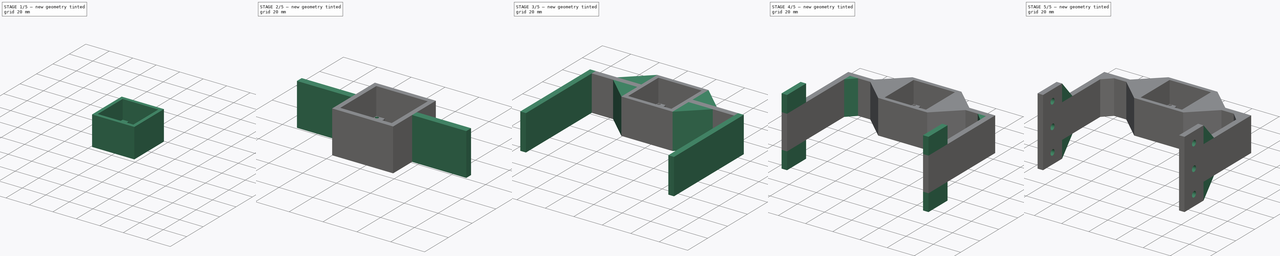
[diagram: build sequence overview — one tinted view per stage of 5, left to right]
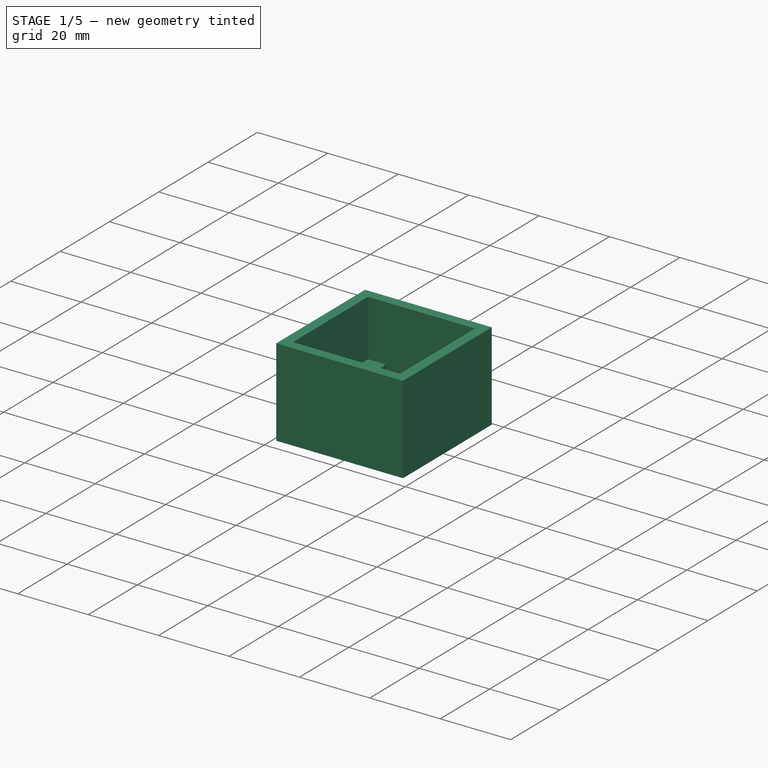
[diagram: stage 1 of 5 — iso view after this stage's code; geometry added in this stage tinted green]
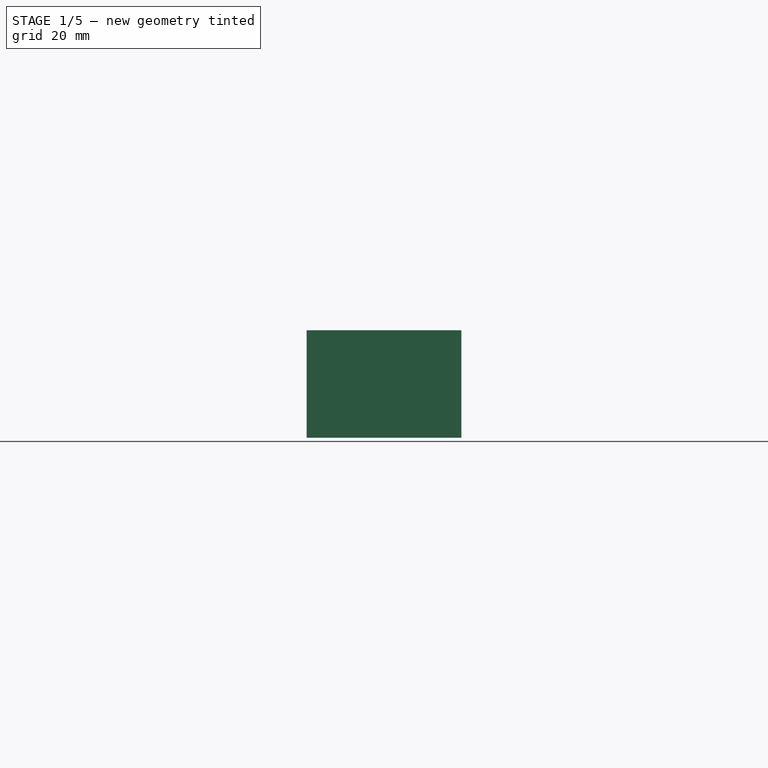
[diagram: stage 1 of 5 — front view after this stage's code; geometry added in this stage tinted green]
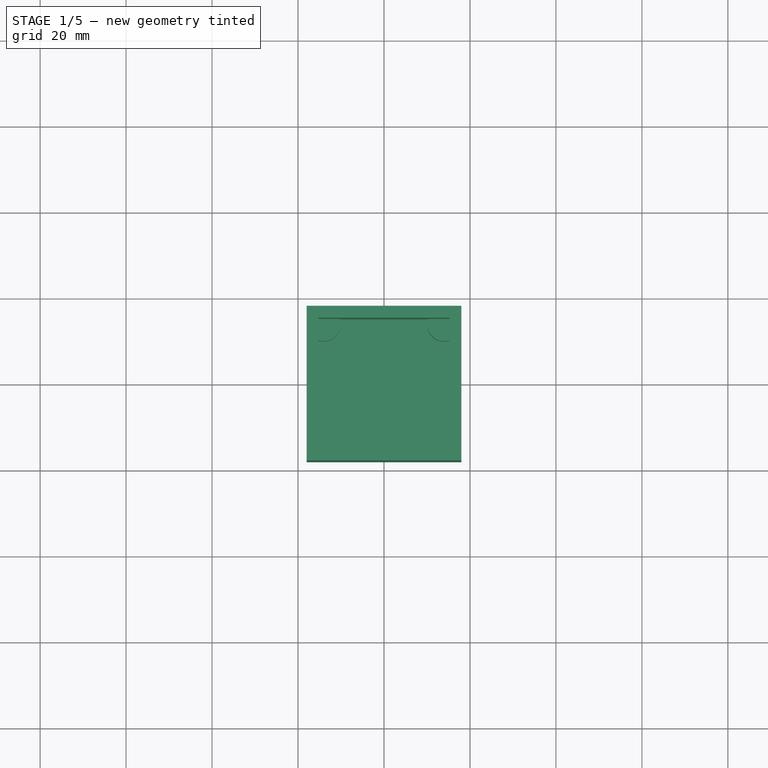
[diagram: stage 1 of 5 — top view after this stage's code; geometry added in this stage tinted green]
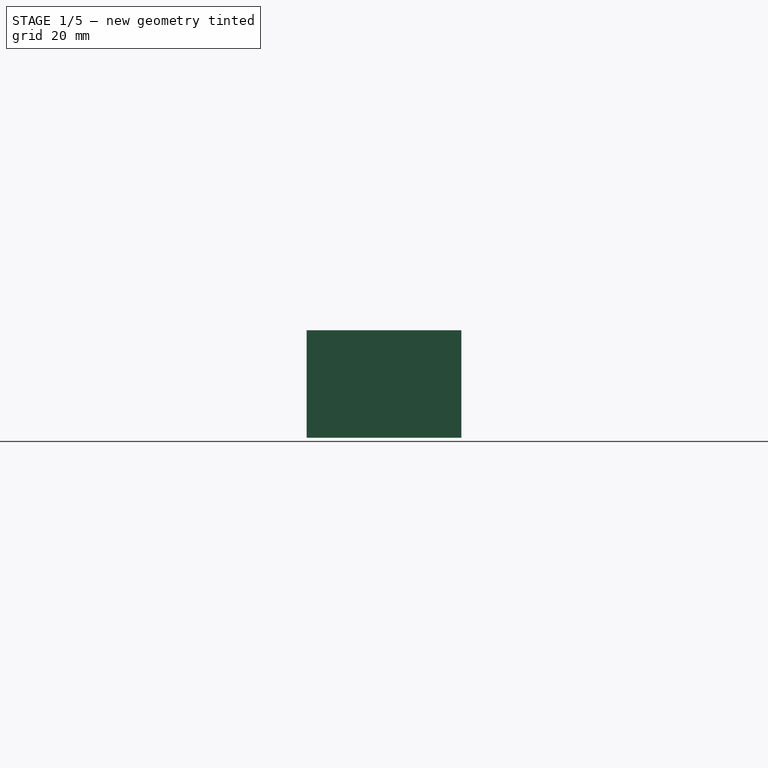
[diagram: stage 1 of 5 — right view after this stage's code; geometry added in this stage tinted green]
FCSTD DOCUMENT  (FreeCAD 0.20R29177 (Git))
Label: Cam_holder
License: All rights reserved
LicenseURL: http://en.wikipedia.org/wiki/All_rights_reserved
objects: Sketcher::SketchObject×15, PartDesign::Plane×13, PartDesign::Pad×12, PartDesign::Pocket×3, PartDesign::Body×1
note: 59 computed .brp shape members not serialized (recipe doc carries the construction recipe); baked Part::Feature solids carry a one-line shape summary decoded from their .brp

FEATURE [Sketcher::SketchObject] Sketch
  FullyConstrained = true
  MapMode = 5
  Support = -> [XY_Plane]
  sketch-geometry (4):
    g0: LineSegment StartX=-18 StartY=18 StartZ=0 EndX=18 EndY=18 EndZ=0
    g1: LineSegment StartX=18 StartY=18 StartZ=0 EndX=18 EndY=-18 EndZ=0
    g2: LineSegment StartX=18 StartY=-18 StartZ=0 EndX=-18 EndY=-18 EndZ=0
    g3: LineSegment StartX=-18 StartY=-18 StartZ=0 EndX=-18 EndY=18 EndZ=0
  constraints (12):
    c: Coincident(g0,g1)
    c: Coincident(g1,g2)
    c: Coincident(g2,g3)
    c: Coincident(g3,g0)
    c: Horizontal(g0)
    c: Horizontal(g2)
    c: Vertical(g1)
    c: Vertical(g3)
    c: DistanceX(g0,g0) = 36
    c: DistanceY(g1,g1) = 36
    c: Distance(g0,g-1) = 18
    c: Distance(g2,g-2) = 18
FEATURE [PartDesign::Pad] Pad
  Direction = (0,0,1)
  Length = 25
  Length2 = 10
  Profile = -> Sketch
  ReferenceAxis = -> Sketch [N_Axis]
  Type = 0
FEATURE [Sketcher::SketchObject] Sketch001
  FullyConstrained = true
  MapMode = 5
  Placement = pos=(0,0,25) rot=(0,0,1;0rad)
  Support = -> [Pad]
  sketch-geometry (4):
    g0: LineSegment StartX=-15.2 StartY=15.2 StartZ=0 EndX=15.2 EndY=15.2 EndZ=0
    g1: LineSegment StartX=15.2 StartY=15.2 StartZ=0 EndX=15.2 EndY=-15.2 EndZ=0
    g2: LineSegment StartX=15.2 StartY=-15.2 StartZ=0 EndX=-15.2 EndY=-15.2 EndZ=0
    g3: LineSegment StartX=-15.2 StartY=-15.2 StartZ=0 EndX=-15.2 EndY=15.2 EndZ=0
  constraints (12):
    c: Coincident(g0,g1)
    c: Coincident(g1,g2)
    c: Coincident(g2,g3)
    c: Coincident(g3,g0)
    c: Horizontal(g0)
    c: Horizontal(g2)
    c: Vertical(g1)
    c: Vertical(g3)
    c: DistanceX(g0,g0) = 30.4
    c: DistanceY(g1,g1) = 30.4
    c: Distance(g0,g-1) = 15.2
    c: Distance(g2,g-2) = 15.2
FEATURE [PartDesign::Pocket] Pocket
  BaseFeature = -> Pad
  Direction = (0,0,-1)
  Length = 22
  Length2 = 5
  Profile = -> Sketch001
  ReferenceAxis = -> Sketch001 [N_Axis]
  Type = 0
FEATURE [Sketcher::SketchObject] Sketch002
  FullyConstrained = true
  MapMode = 5
  Placement = pos=(0,0,3) rot=(0,0,1;0rad)
  Support = -> [Pocket]
  sketch-geometry (4):
    g0: Circle CenterX=-14 CenterY=14 CenterZ=0 NormalX=0 NormalY=0 NormalZ=1 AngleXU=0 Radius=4
    g1: Circle CenterX=14 CenterY=14 CenterZ=0 NormalX=0 NormalY=0 NormalZ=1 AngleXU=0 Radius=4
    g2: Circle CenterX=14 CenterY=-14 CenterZ=0 NormalX=0 NormalY=0 NormalZ=1 AngleXU=0 Radius=4
    g3: Circle CenterX=-14 CenterY=-14 CenterZ=0 NormalX=0 NormalY=0 NormalZ=1 AngleXU=0 Radius=4
  constraints (12):
    c: Distance(g1,g-1) = 14
    c: Distance(g2,g-1) = 14
    c: Distance(g3,g-1) = 14
    c: Distance(g0,g-1) = 14
    c: Distance(g0,g-2) = 14
    c: Distance(g1,g-2) = 14
    c: Distance(g2,g-2) = 14
    c: Distance(g3,g-2) = 14
    c: Diameter(g0) = 8
    c: Diameter(g1) = 8
    c: Diameter(g2) = 8
    c: Diameter(g3) = 8
FEATURE [PartDesign::Pad] Pad001
  BaseFeature = -> Pocket
  Direction = (0,0,1)
  Length = 6
  Length2 = 10
  Profile = -> Sketch002
  ReferenceAxis = -> Sketch002 [N_Axis]
  Type = 0
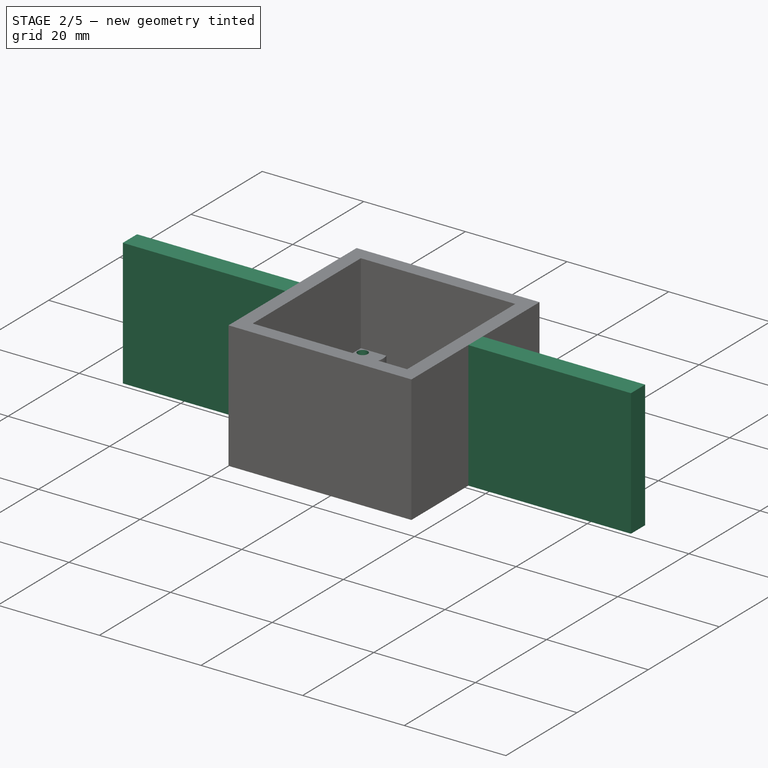
[diagram: stage 2 of 5 — iso view after this stage's code; geometry added in this stage tinted green]
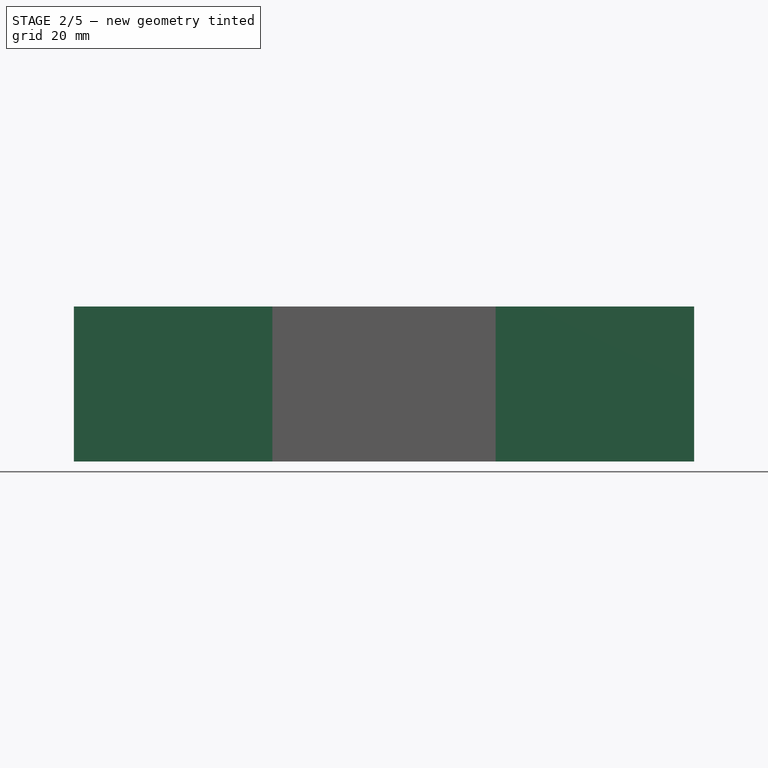
[diagram: stage 2 of 5 — front view after this stage's code; geometry added in this stage tinted green]
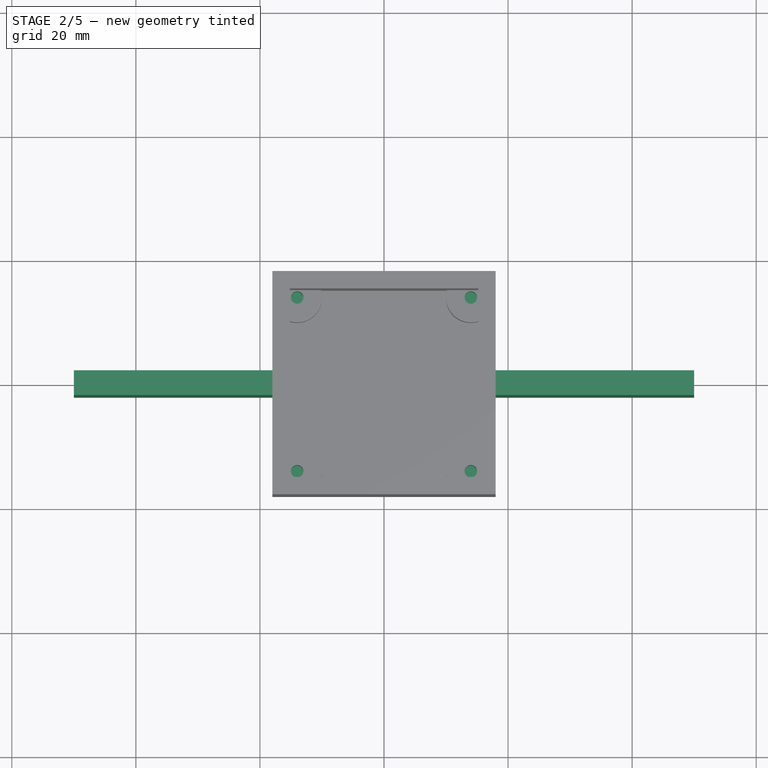
[diagram: stage 2 of 5 — top view after this stage's code; geometry added in this stage tinted green]
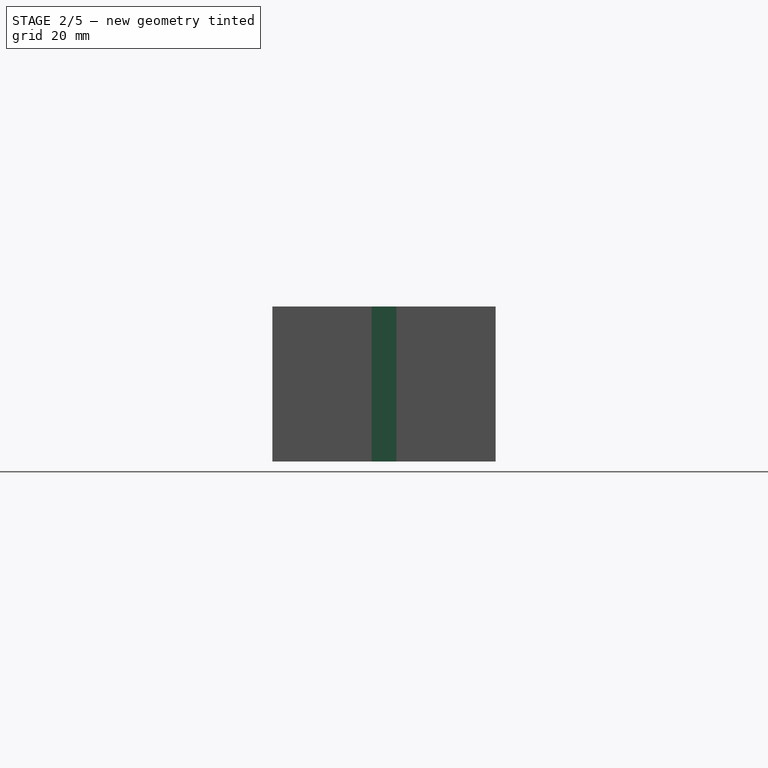
[diagram: stage 2 of 5 — right view after this stage's code; geometry added in this stage tinted green]
FEATURE [PartDesign::Plane] DatumPlane
  Length = 128.044
  MapMode = 5
  Placement = pos=(0,0,9) rot=(0,0,1;0rad)
  ResizeMode = 0
  Support = -> [Pad001]
  Width = 113.044
FEATURE [Sketcher::SketchObject] Sketch003
  FullyConstrained = true
  MapMode = 5
  Placement = pos=(0,0,9) rot=(0,0,1;0rad)
  Support = -> [DatumPlane]
  sketch-geometry (4):
    g0: Circle CenterX=-14 CenterY=-14 CenterZ=0 NormalX=0 NormalY=0 NormalZ=1 AngleXU=0 Radius=1
    g1: Circle CenterX=14 CenterY=-14 CenterZ=0 NormalX=0 NormalY=0 NormalZ=1 AngleXU=0 Radius=1
    g2: Circle CenterX=14 CenterY=14 CenterZ=0 NormalX=0 NormalY=0 NormalZ=1 AngleXU=0 Radius=1
    g3: Circle CenterX=-14 CenterY=14 CenterZ=0 NormalX=0 NormalY=0 NormalZ=1 AngleXU=0 Radius=1
  constraints (12):
    c: Diameter(g3) = 2
    c: Diameter(g2) = 2
    c: Diameter(g1) = 2
    c: Diameter(g0) = 2
    c: Distance(g0,g-2) = 14
    c: Distance(g1,g-2) = 14
    c: Distance(g0,g-1) = 14
    c: Distance(g1,g-1) = 14
    c: Distance(g2,g-1) = 14
    c: Distance(g3,g-1) = 14
    c: Distance(g3,g-2) = 14
    c: Distance(g2,g-2) = 14
FEATURE [PartDesign::Pocket] Pocket001
  BaseFeature = -> Pad001
  Direction = (0,0,-1)
  Length = 6
  Length2 = 5
  Profile = -> Sketch003
  ReferenceAxis = -> Sketch003 [N_Axis]
  Type = 0
FEATURE [PartDesign::Plane] DatumPlane001
  Length = 108.248
  MapMode = 5
  Placement = pos=(18,0,0) rot=(0.57735,0.57735,0.57735;2.0944rad)
  ResizeMode = 0
  Support = -> [Pocket001]
  Width = 77.748
FEATURE [Sketcher::SketchObject] Sketch004
  FullyConstrained = false
  MapMode = 5
  Placement = pos=(18,0,0) rot=(0.57735,0.57735,0.57735;2.0944rad)
  Support = -> [DatumPlane001]
  sketch-geometry (4):
    g0: LineSegment StartX=-2 StartY=25 StartZ=0 EndX=2 EndY=25 EndZ=0
    g1: LineSegment StartX=2 StartY=25 StartZ=0 EndX=2 EndY=0 EndZ=0
    g2: LineSegment StartX=2 StartY=0 StartZ=0 EndX=-2 EndY=0 EndZ=0
    g3: LineSegment StartX=-2 StartY=0 StartZ=0 EndX=-2 EndY=25 EndZ=0
  constraints (9):
    c: Coincident(g0,g1)
    c: Coincident(g1,g2)
    c: Coincident(g2,g3)
    c: Coincident(g3,g0)
    c: Horizontal(g0)
    c: Horizontal(g2)
    c: Vertical(g1)
    c: Vertical(g3)
    c: PointOnObject(g1,g-1)
FEATURE [PartDesign::Pad] Pad002
  BaseFeature = -> Pocket001
  Direction = (1,0,0)
  Length = 32
  Length2 = 10
  Profile = -> Sketch004
  ReferenceAxis = -> Sketch004 [N_Axis]
  Type = 0
FEATURE [PartDesign::Plane] DatumPlane002
  Length = 108.248
  MapMode = 5
  Placement = pos=(-18,0,0) rot=(0.57735,-0.57735,-0.57735;2.0944rad)
  ResizeMode = 0
  Support = -> [Pad002]
  Width = 77.748
FEATURE [Sketcher::SketchObject] Sketch005
  FullyConstrained = false
  MapMode = 5
  Placement = pos=(-18,0,0) rot=(0.57735,-0.57735,-0.57735;2.0944rad)
  Support = -> [DatumPlane002]
  sketch-geometry (4):
    g0: LineSegment StartX=-2 StartY=0 StartZ=0 EndX=2 EndY=0 EndZ=0
    g1: LineSegment StartX=2 StartY=0 StartZ=0 EndX=2 EndY=25 EndZ=0
    g2: LineSegment StartX=2 StartY=25 StartZ=0 EndX=-2 EndY=25 EndZ=0
    g3: LineSegment StartX=-2 StartY=25 StartZ=0 EndX=-2 EndY=0 EndZ=0
  constraints (9):
    c: Coincident(g0,g1)
    c: Coincident(g1,g2)
    c: Coincident(g2,g3)
    c: Coincident(g3,g0)
    c: Horizontal(g0)
    c: Horizontal(g2)
    c: Vertical(g1)
    c: Vertical(g3)
    c: PointOnObject(g0,g-1)
FEATURE [PartDesign::Pad] Pad003
  BaseFeature = -> Pad002
  Direction = (-1,0,0)
  Length = 32
  Length2 = 10
  Profile = -> Sketch005
  ReferenceAxis = -> Sketch005 [N_Axis]
  Type = 0
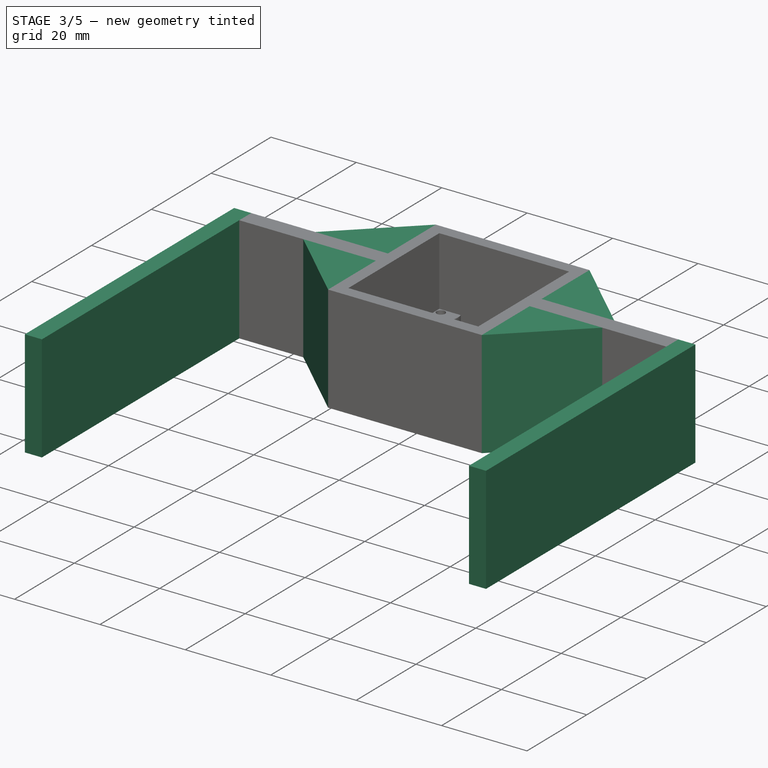
[diagram: stage 3 of 5 — iso view after this stage's code; geometry added in this stage tinted green]
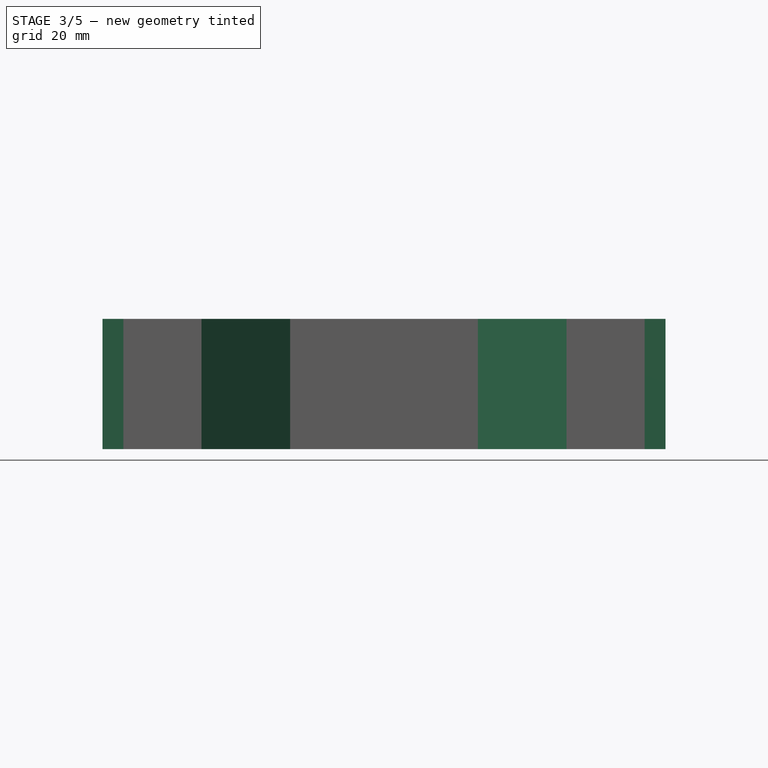
[diagram: stage 3 of 5 — front view after this stage's code; geometry added in this stage tinted green]
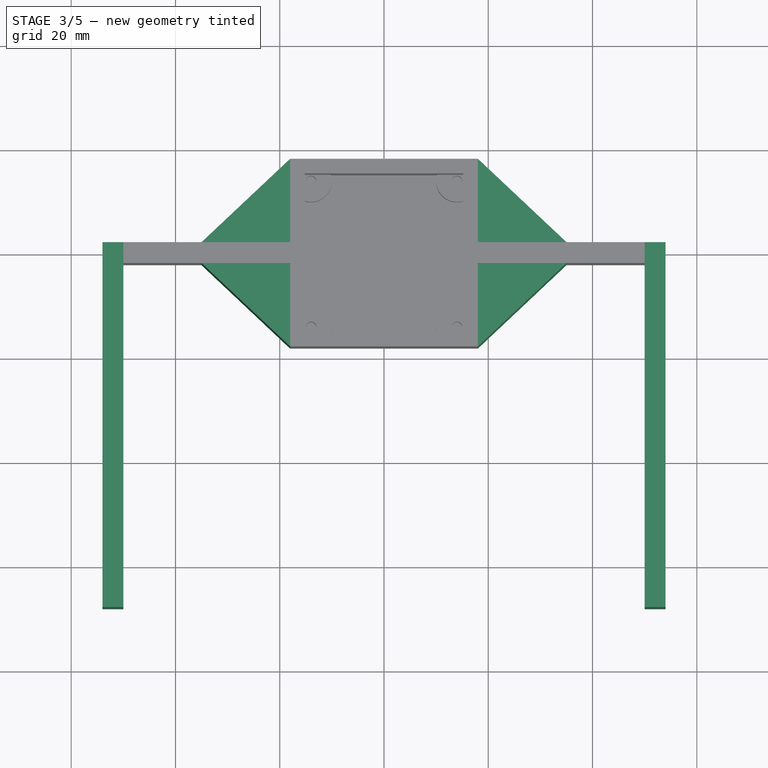
[diagram: stage 3 of 5 — top view after this stage's code; geometry added in this stage tinted green]
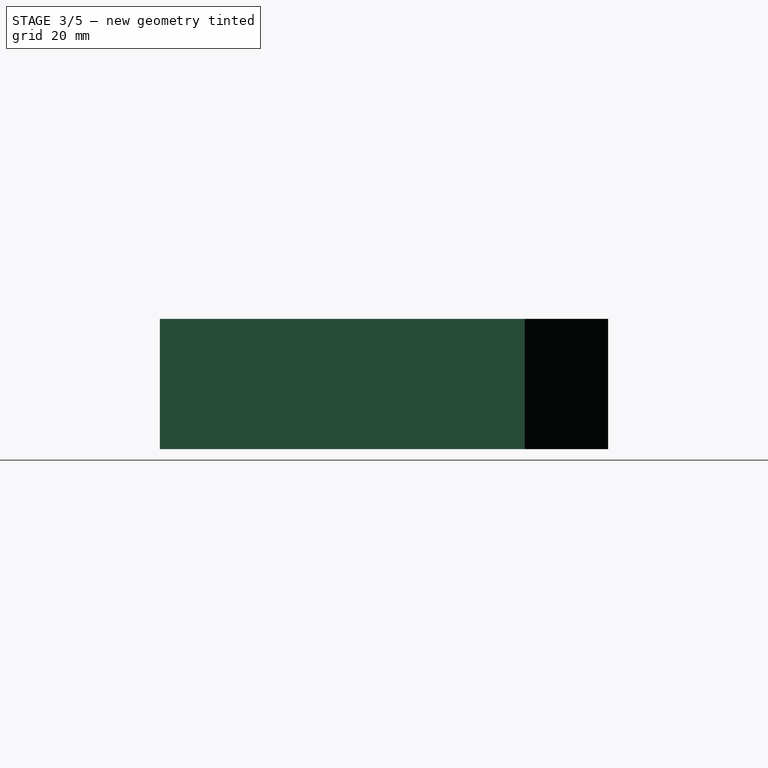
[diagram: stage 3 of 5 — right view after this stage's code; geometry added in this stage tinted green]
FEATURE [PartDesign::Plane] DatumPlane003
  Length = 124.432
  MapMode = 5
  Placement = pos=(0,2,0) rot=(0,0.707107,0.707107;3.14159rad)
  ResizeMode = 0
  Support = -> [Pad003]
  Width = 78.9317
FEATURE [PartDesign::Plane] DatumPlane004
  Length = 108.248
  MapMode = 5
  Placement = pos=(-50,0,0) rot=(0.57735,-0.57735,-0.57735;2.0944rad)
  ResizeMode = 0
  Support = -> [Pad003]
  Width = 77.748
FEATURE [Sketcher::SketchObject] Sketch006
  FullyConstrained = false
  MapMode = 5
  Placement = pos=(-50,0,0) rot=(0.57735,-0.57735,-0.57735;2.0944rad)
  Support = -> [DatumPlane004]
  sketch-geometry (4):
    g0: LineSegment StartX=-2 StartY=25 StartZ=0 EndX=68 EndY=25 EndZ=0
    g1: LineSegment StartX=68 StartY=25 StartZ=0 EndX=68 EndY=0 EndZ=0
    g2: LineSegment StartX=68 StartY=0 StartZ=0 EndX=-2 EndY=0 EndZ=0
    g3: LineSegment StartX=-2 StartY=0 StartZ=0 EndX=-2 EndY=25 EndZ=0
  constraints (11):
    c: Coincident(g0,g1)
    c: Coincident(g1,g2)
    c: Coincident(g2,g3)
    c: Coincident(g3,g0)
    c: Horizontal(g0)
    c: Horizontal(g2)
    c: Vertical(g1)
    c: Vertical(g3)
    c: PointOnObject(g1,g-1)
    c: Distance(g0,g-2) = 2
    c: Distance(g2) = 70
FEATURE [PartDesign::Pad] Pad004
  BaseFeature = -> Pad003
  Direction = (-1,0,0)
  Length = 4
  Length2 = 10
  Profile = -> Sketch006
  ReferenceAxis = -> Sketch006 [N_Axis]
  Type = 0
FEATURE [PartDesign::Plane] DatumPlane005
  Length = 108.248
  MapMode = 5
  Placement = pos=(50,0,0) rot=(0.57735,0.57735,0.57735;2.0944rad)
  ResizeMode = 0
  Support = -> [Pad004]
  Width = 77.748
FEATURE [Sketcher::SketchObject] Sketch007
  FullyConstrained = false
  MapMode = 5
  Placement = pos=(50,0,0) rot=(0.57735,0.57735,0.57735;2.0944rad)
  Support = -> [DatumPlane005]
  sketch-geometry (4):
    g0: LineSegment StartX=2 StartY=0 StartZ=0 EndX=-68 EndY=0 EndZ=0
    g1: LineSegment StartX=-68 StartY=0 StartZ=0 EndX=-68 EndY=25 EndZ=0
    g2: LineSegment StartX=-68 StartY=25 StartZ=0 EndX=2 EndY=25 EndZ=0
    g3: LineSegment StartX=2 StartY=25 StartZ=0 EndX=2 EndY=0 EndZ=0
  constraints (11):
    c: Coincident(g0,g1)
    c: Coincident(g1,g2)
    c: Coincident(g2,g3)
    c: Coincident(g3,g0)
    c: Horizontal(g0)
    c: Horizontal(g2)
    c: Vertical(g1)
    c: Vertical(g3)
    c: PointOnObject(g0,g-1)
    c: Distance(g2,g-2) = 2
    c: Distance(g2) = 70
FEATURE [PartDesign::Pad] Pad005
  BaseFeature = -> Pad004
  Direction = (1,0,0)
  Length = 4
  Length2 = 10
  Profile = -> Sketch007
  ReferenceAxis = -> Sketch007 [N_Axis]
  Type = 0
FEATURE [PartDesign::Plane] DatumPlane006
  Length = 128.044
  MapMode = 5
  Placement = pos=(0,0,0) rot=(1,0,0;3.14159rad)
  ResizeMode = 0
  Support = -> [Pad005]
  Width = 113.044
FEATURE [Sketcher::SketchObject] Sketch008
  FullyConstrained = false
  MapMode = 5
  Placement = pos=(0,0,0) rot=(1,0,0;3.14159rad)
  Support = -> [DatumPlane006]
  sketch-geometry (12):
    g0: LineSegment StartX=18 StartY=18 StartZ=0 EndX=18 EndY=2 EndZ=0
    g1: LineSegment StartX=18 StartY=2 StartZ=0 EndX=35 EndY=2 EndZ=0
    g2: LineSegment StartX=35 StartY=2 StartZ=0 EndX=18 EndY=18 EndZ=0
    g3: LineSegment StartX=18 StartY=-2 StartZ=0 EndX=18 EndY=-18 EndZ=0
    g4: LineSegment StartX=18 StartY=-2 StartZ=0 EndX=35 EndY=-2 EndZ=0
    g5: LineSegment StartX=35 StartY=-2 StartZ=0 EndX=18 EndY=-18 EndZ=0
    g6: LineSegment StartX=-18 StartY=-18 StartZ=0 EndX=-18 EndY=-2 EndZ=0
    g7: LineSegment StartX=-18 StartY=-2 StartZ=0 EndX=-35 EndY=-2 EndZ=0
    g8: LineSegment StartX=-35 StartY=-2 StartZ=0 EndX=-18 EndY=-18 EndZ=0
    g9: LineSegment StartX=-18 StartY=2 StartZ=0 EndX=-18 EndY=18 EndZ=0
    g10: LineSegment StartX=-18 StartY=2 StartZ=0 EndX=-35 EndY=2 EndZ=0
    g11: LineSegment StartX=-35 StartY=2 StartZ=0 EndX=-18 EndY=18 EndZ=0
  constraints (17):
    c: Vertical(g0)
    c: Horizontal(g1)
    c: Coincident(g2,g0)
    c: Vertical(g3)
    c: Coincident(g4,g3)
    c: Horizontal(g4)
    c: Coincident(g5,g4)
    c: Coincident(g5,g3)
    c: Vertical(g6)
    c: Coincident(g7,g6)
    c: Horizontal(g7)
    c: Coincident(g8,g7)
    c: Coincident(g8,g6)
    c: Vertical(g9)
    c: Coincident(g10,g9)
    c: Horizontal(g10)
    c: Coincident(g11,g9)
FEATURE [PartDesign::Pad] Pad006
  BaseFeature = -> Pad005
  Direction = (0,0,-1)
  Length = 25
  Length2 = 10
  Profile = -> Sketch008
  ReferenceAxis = -> Sketch008 [N_Axis]
  Reversed = true
  Type = 0
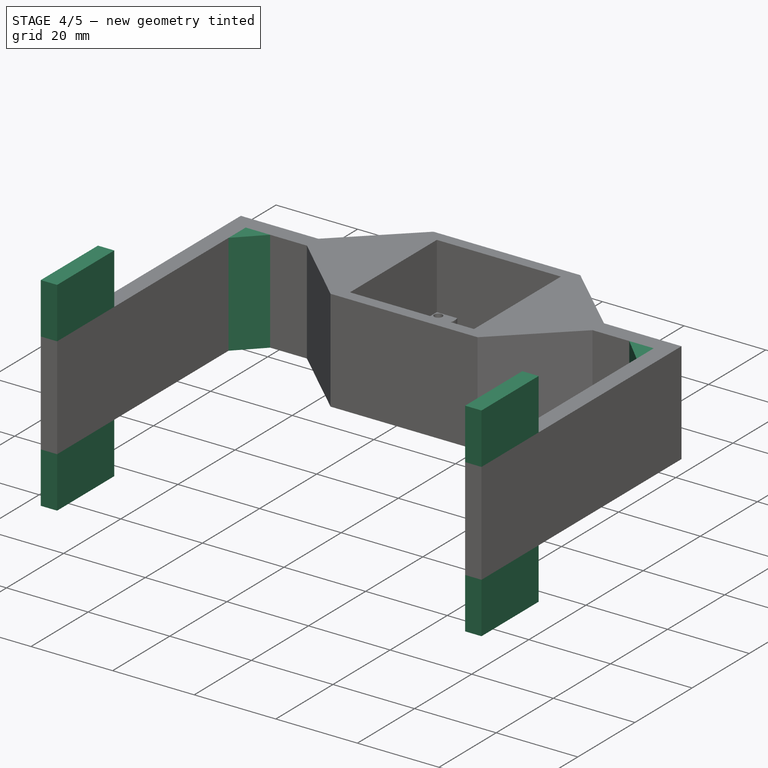
[diagram: stage 4 of 5 — iso view after this stage's code; geometry added in this stage tinted green]
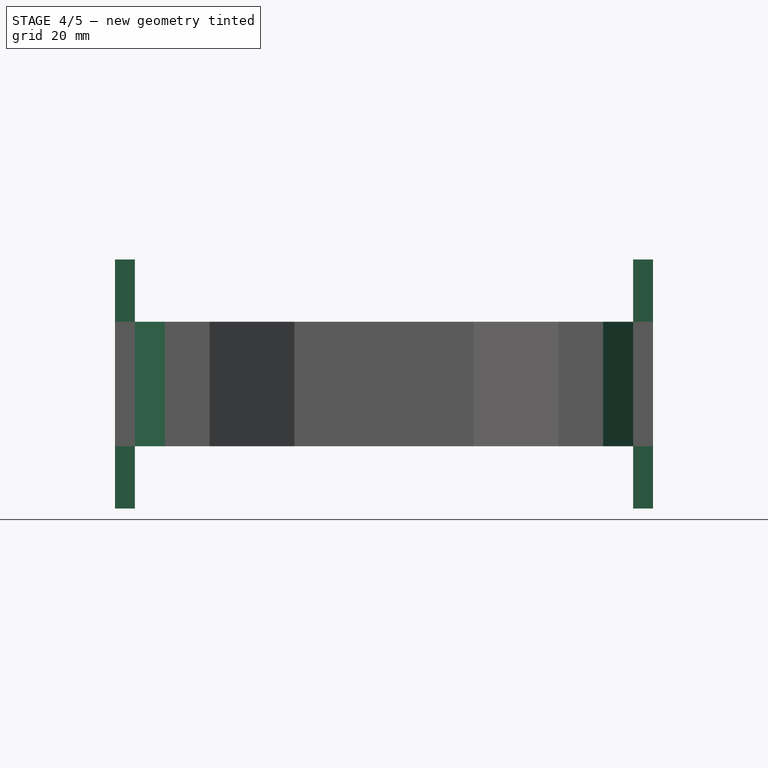
[diagram: stage 4 of 5 — front view after this stage's code; geometry added in this stage tinted green]
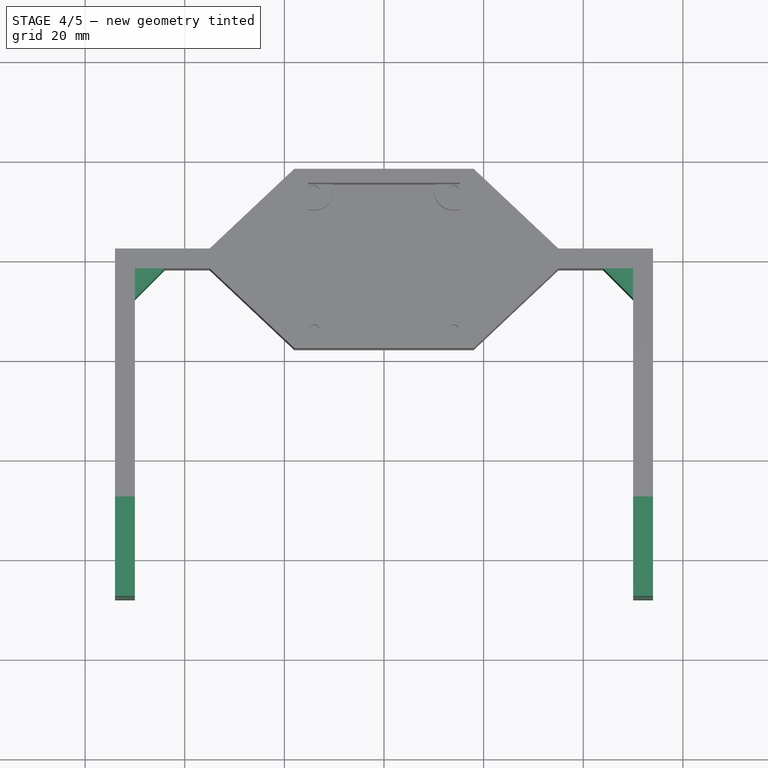
[diagram: stage 4 of 5 — top view after this stage's code; geometry added in this stage tinted green]
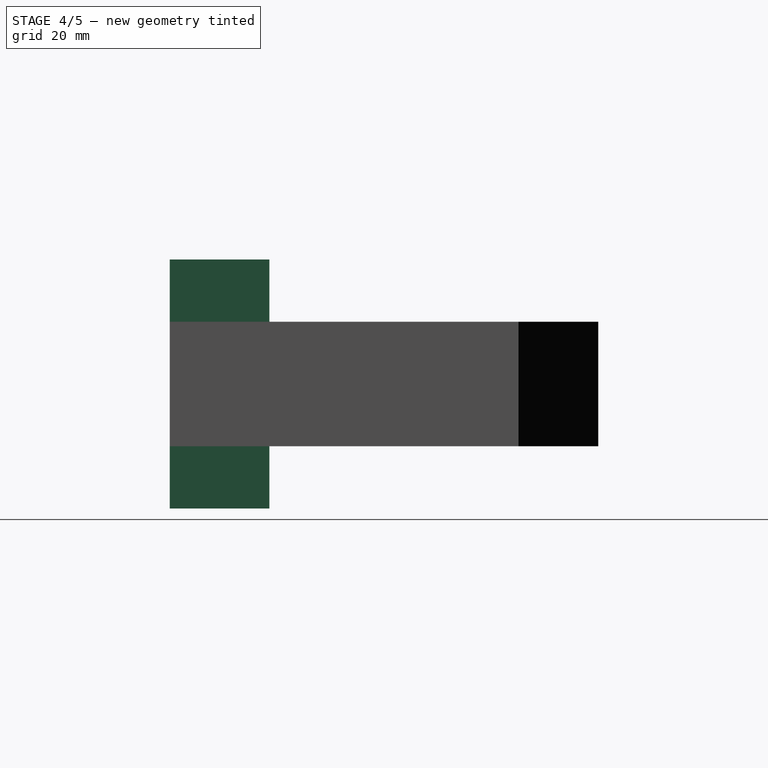
[diagram: stage 4 of 5 — right view after this stage's code; geometry added in this stage tinted green]
FEATURE [Sketcher::SketchObject] Sketch009
  FullyConstrained = false
  MapMode = 5
  Placement = pos=(0,0,0) rot=(1,0,0;3.14159rad)
  Support = -> [DatumPlane006]
  sketch-geometry (6):
    g0: LineSegment StartX=50 StartY=2 StartZ=0 EndX=50 EndY=8 EndZ=0
    g1: LineSegment StartX=50 StartY=8 StartZ=0 EndX=44 EndY=2 EndZ=0
    g2: LineSegment StartX=44 StartY=2 StartZ=0 EndX=50 EndY=2 EndZ=0
    g3: LineSegment StartX=-50 StartY=2 StartZ=0 EndX=-44 EndY=2 EndZ=0
    g4: LineSegment StartX=-50 StartY=2 StartZ=0 EndX=-50 EndY=8 EndZ=0
    g5: LineSegment StartX=-50 StartY=8 StartZ=0 EndX=-44 EndY=2 EndZ=0
  constraints (9):
    c: Vertical(g0)
    c: Coincident(g2,g1)
    c: Coincident(g2,g0)
    c: Horizontal(g2)
    c: Horizontal(g3)
    c: Coincident(g4,g3)
    c: Vertical(g4)
    c: Coincident(g5,g4)
    c: Coincident(g5,g3)
FEATURE [PartDesign::Pad] Pad007
  BaseFeature = -> Pad006
  Direction = (0,0,-1)
  Length = 25
  Length2 = 10
  Profile = -> Sketch009
  ReferenceAxis = -> Sketch009 [N_Axis]
  Reversed = true
  Type = 0
FEATURE [PartDesign::Plane] DatumPlane007
  Length = 124.432
  MapMode = 5
  Placement = pos=(0,-18,0) rot=(1,0,0;1.5708rad)
  ResizeMode = 0
  Support = -> [Pad007]
  Width = 78.9317
FEATURE [PartDesign::Plane] DatumPlane008
  Length = 108.248
  MapMode = 5
  Placement = pos=(54,0,0) rot=(0.57735,0.57735,0.57735;2.0944rad)
  ResizeMode = 0
  Support = -> [Pad007]
  Width = 77.748
FEATURE [Sketcher::SketchObject] Sketch010
  FullyConstrained = false
  MapMode = 5
  Placement = pos=(54,0,0) rot=(0.57735,0.57735,0.57735;2.0944rad)
  Support = -> [DatumPlane008]
  sketch-geometry (5):
    g0: LineSegment StartX=-68 StartY=37.5 StartZ=0 EndX=-48 EndY=37.5 EndZ=0
    g1: LineSegment StartX=-48 StartY=37.5 StartZ=0 EndX=-48 EndY=-12.5 EndZ=0
    g2: LineSegment StartX=-48 StartY=-12.5 StartZ=0 EndX=-68 EndY=-12.5 EndZ=0
    g3: LineSegment StartX=-68 StartY=-12.5 StartZ=0 EndX=-68 EndY=37.5 EndZ=0
    g4: GeomPoint X=-40 Y=25 Z=0
  constraints (12):
    c: Coincident(g0,g1)
    c: Coincident(g1,g2)
    c: Coincident(g2,g3)
    c: Coincident(g3,g0)
    c: Horizontal(g0)
    c: Horizontal(g2)
    c: Vertical(g1)
    c: Vertical(g3)
    c: DistanceX(g0,g0) = 20
    c: DistanceY(g1,g1) = 50
    c: Distance(g1,g-1) = 12.5
    c: Distance(g4,g-1) = 25
FEATURE [PartDesign::Pad] Pad008
  BaseFeature = -> Pad007
  Direction = (1,0,0)
  Length = 4
  Length2 = 10
  Profile = -> Sketch010
  ReferenceAxis = -> Sketch010 [N_Axis]
  Reversed = true
  Type = 0
FEATURE [PartDesign::Plane] DatumPlane009
  Length = 108.248
  MapMode = 5
  Placement = pos=(-54,0,0) rot=(0.57735,-0.57735,-0.57735;2.0944rad)
  ResizeMode = 0
  Support = -> [Pad008]
  Width = 77.748
FEATURE [Sketcher::SketchObject] Sketch011
  FullyConstrained = false
  MapMode = 5
  Placement = pos=(-54,0,0) rot=(0.57735,-0.57735,-0.57735;2.0944rad)
  Support = -> [DatumPlane009]
  sketch-geometry (4):
    g0: LineSegment StartX=48 StartY=37.5 StartZ=0 EndX=68 EndY=37.5 EndZ=0
    g1: LineSegment StartX=68 StartY=37.5 StartZ=0 EndX=68 EndY=-12.5 EndZ=0
    g2: LineSegment StartX=68 StartY=-12.5 StartZ=0 EndX=48 EndY=-12.5 EndZ=0
    g3: LineSegment StartX=48 StartY=-12.5 StartZ=0 EndX=48 EndY=37.5 EndZ=0
  constraints (11):
    c: Coincident(g0,g1)
    c: Coincident(g1,g2)
    c: Coincident(g2,g3)
    c: Coincident(g3,g0)
    c: Horizontal(g0)
    c: Horizontal(g2)
    c: Vertical(g1)
    c: Vertical(g3)
    c: DistanceY(g1,g1) = 50
    c: Distance(g2,g-1) = 12.5
    c: DistanceX(g0,g0) = 20
FEATURE [PartDesign::Pad] Pad009
  BaseFeature = -> Pad008
  Direction = (-1,0,0)
  Length = 4
  Length2 = 10
  Profile = -> Sketch011
  ReferenceAxis = -> Sketch011 [N_Axis]
  Reversed = true
  Type = 0
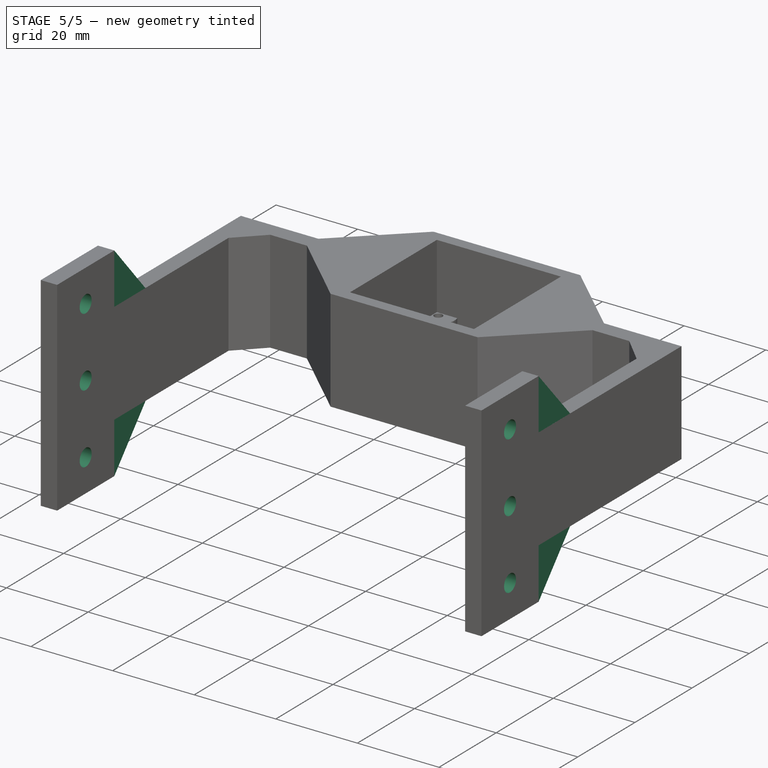
[diagram: stage 5 of 5 — iso view after this stage's code; geometry added in this stage tinted green]
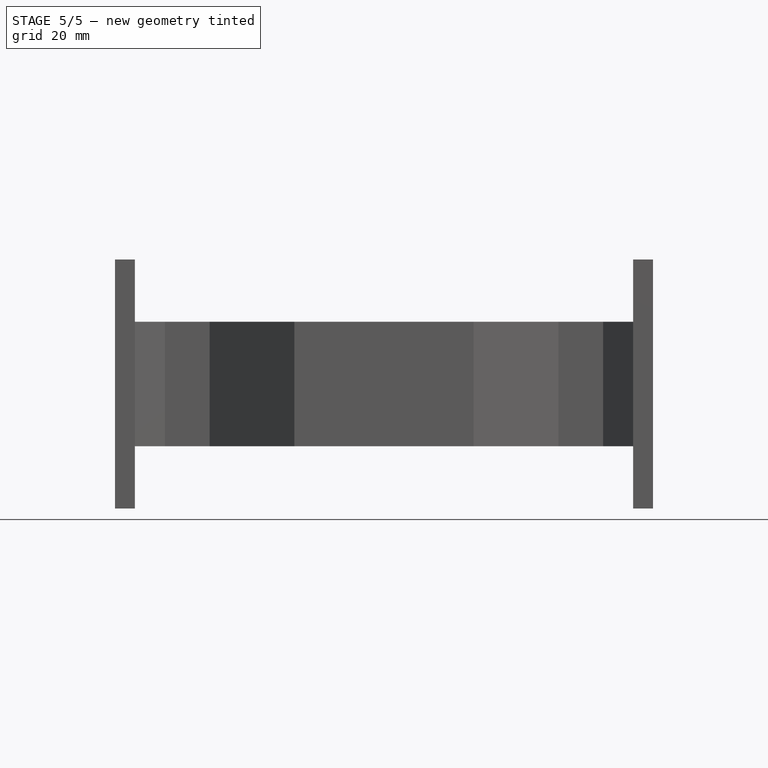
[diagram: stage 5 of 5 — front view after this stage's code; geometry added in this stage tinted green]
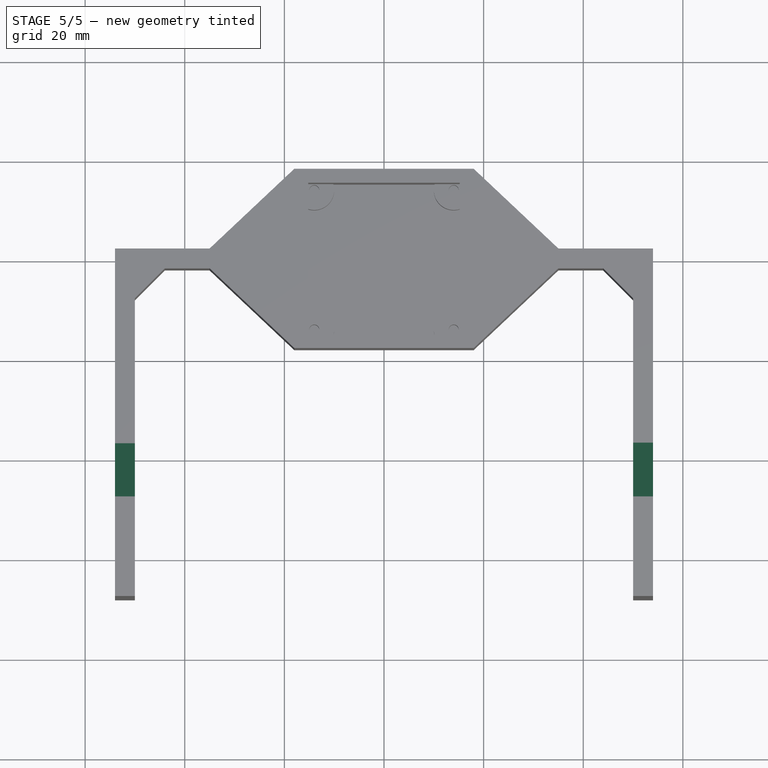
[diagram: stage 5 of 5 — top view after this stage's code; geometry added in this stage tinted green]
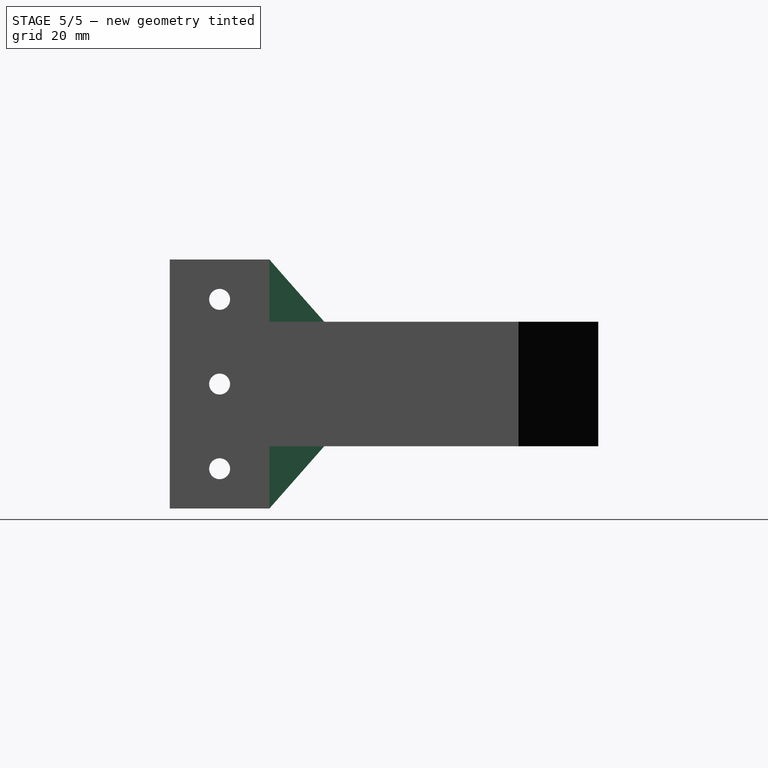
[diagram: stage 5 of 5 — right view after this stage's code; geometry added in this stage tinted green]
FEATURE [PartDesign::Plane] DatumPlane010
  Length = 108.248
  MapMode = 5
  Placement = pos=(54,0,0) rot=(0.57735,0.57735,0.57735;2.0944rad)
  ResizeMode = 0
  Support = -> [Pad009]
  Width = 77.748
FEATURE [Sketcher::SketchObject] Sketch012
  FullyConstrained = false
  MapMode = 5
  Placement = pos=(54,0,0) rot=(0.57735,0.57735,0.57735;2.0944rad)
  Support = -> [DatumPlane010]
  sketch-geometry (5):
    g0: Circle CenterX=-58 CenterY=29.4889 CenterZ=0 NormalX=0 NormalY=0 NormalZ=1 AngleXU=0 Radius=2.1
    g1: Circle CenterX=-58 CenterY=12.4889 CenterZ=0 NormalX=0 NormalY=0 NormalZ=1 AngleXU=0 Radius=2.1
    g2: Circle CenterX=-58 CenterY=-4.51107 CenterZ=0 NormalX=0 NormalY=0 NormalZ=1 AngleXU=0 Radius=2.1
    g3: GeomPoint X=-58 Y=-12.5111 Z=0
    g4: GeomPoint X=-68 Y=-4.53614 Z=0
  constraints (7):
    c: Distance(g0,g2) = 34
    c: Distance(g2,g1) = 17
    c: Distance(g2,g3) = 8
    c: Distance(g4,g2) = 10
    c: Diameter(g0) = 4.2
    c: Diameter(g1) = 4.2
    c: Diameter(g2) = 4.2
FEATURE [PartDesign::Pocket] Pocket002
  BaseFeature = -> Pad009
  Direction = (-1,0,0)
  Length = 120
  Length2 = 5
  Profile = -> Sketch012
  ReferenceAxis = -> Sketch012 [N_Axis]
  Type = 0
FEATURE [PartDesign::Plane] DatumPlane011
  Length = 108.248
  MapMode = 5
  Placement = pos=(54,0,0) rot=(0.57735,0.57735,0.57735;2.0944rad)
  ResizeMode = 0
  Support = -> [Pocket002]
  Width = 77.748
FEATURE [Sketcher::SketchObject] Sketch013
  FullyConstrained = false
  MapMode = 5
  Placement = pos=(54,0,0) rot=(0.57735,0.57735,0.57735;2.0944rad)
  Support = -> [DatumPlane011]
  sketch-geometry (6):
    g0: LineSegment StartX=-48 StartY=25.0034 StartZ=0 EndX=-48 EndY=37.4434 EndZ=0
    g1: LineSegment StartX=-48 StartY=25.0034 StartZ=0 EndX=-37 EndY=25.0034 EndZ=0
    g2: LineSegment StartX=-37 StartY=25.0034 StartZ=0 EndX=-48 EndY=37.4434 EndZ=0
    g3: LineSegment StartX=-48 StartY=0 StartZ=0 EndX=-48 EndY=-12.4898 EndZ=0
    g4: LineSegment StartX=-48 StartY=0 StartZ=0 EndX=-37 EndY=0 EndZ=0
    g5: LineSegment StartX=-48 StartY=-12.4898 StartZ=0 EndX=-37 EndY=0 EndZ=0
  constraints (12):
    c: Vertical(g0)
    c: Coincident(g1,g0)
    c: Horizontal(g1)
    c: Coincident(g2,g1)
    c: Coincident(g2,g0)
    c: DistanceY(g0,g0) = 12.44
    c: PointOnObject(g3,g-1)
    c: Vertical(g3)
    c: Coincident(g4,g3)
    c: PointOnObject(g4,g-1)
    c: Coincident(g5,g3)
    c: Coincident(g5,g4)
FEATURE [PartDesign::Pad] Pad010
  BaseFeature = -> Pocket002
  Direction = (1,0,0)
  Length = 4
  Length2 = 10
  Profile = -> Sketch013
  ReferenceAxis = -> Sketch013 [N_Axis]
  Reversed = true
  Type = 0
FEATURE [PartDesign::Plane] DatumPlane012
  Length = 108.248
  MapMode = 5
  Placement = pos=(-50,0,0) rot=(0.57735,0.57735,0.57735;2.0944rad)
  ResizeMode = 0
  Support = -> [Pad010]
  Width = 77.748
FEATURE [Sketcher::SketchObject] Sketch014
  FullyConstrained = false
  MapMode = 5
  Placement = pos=(-50,0,0) rot=(0.57735,0.57735,0.57735;2.0944rad)
  Support = -> [DatumPlane012]
  sketch-geometry (6):
    g0: LineSegment StartX=-47.9899 StartY=24.9131 StartZ=0 EndX=-47.9899 EndY=37.485 EndZ=0
    g1: LineSegment StartX=-47.9899 StartY=24.9131 StartZ=0 EndX=-37.0298 EndY=24.9131 EndZ=0
    g2: LineSegment StartX=-37.0298 StartY=24.9131 StartZ=0 EndX=-47.9899 EndY=37.485 EndZ=0
    g3: LineSegment StartX=-47.9899 StartY=-12.4803 StartZ=0 EndX=-47.9899 EndY=0 EndZ=0
    g4: LineSegment StartX=-47.9899 StartY=0 StartZ=0 EndX=-37.0298 EndY=0 EndZ=0
    g5: LineSegment StartX=-37.0298 StartY=0 StartZ=0 EndX=-47.9899 EndY=-12.4803 EndZ=0
  constraints (11):
    c: Vertical(g0)
    c: Coincident(g1,g0)
    c: Horizontal(g1)
    c: Coincident(g2,g1)
    c: Coincident(g2,g0)
    c: PointOnObject(g3,g-1)
    c: Vertical(g3)
    c: Coincident(g4,g3)
    c: PointOnObject(g4,g-1)
    c: Coincident(g5,g4)
    c: Coincident(g5,g3)
FEATURE [PartDesign::Pad] Pad011
  BaseFeature = -> Pad010
  Direction = (1,0,0)
  Length = 4
  Length2 = 10
  Profile = -> Sketch014
  ReferenceAxis = -> Sketch014 [N_Axis]
  Reversed = true
  Type = 0
FEATURE [PartDesign::Body] Body
  Group = -> [Sketch,Pad,Sketch001,Pocket,Sketch002,Pad001,DatumPlane,Sketch003,Pocket001,DatumPlane001,Sketch004,Pad002,DatumPlane002,Sketch005,Pad003,DatumPlane003,DatumPlane004,Sketch006,Pad004,DatumPlane005,Sketch007,Pad005,DatumPlane006,Sketch008,Pad006,Sketch009,Pad007,DatumPlane007,DatumPlane008,Sketch010,Pad008,DatumPlane009,Sketch011,Pad009,DatumPlane010,Sketch012,Pocket002,DatumPlane011,Sketch013,+4 more]
  Origin = -> Origin
  Tip = -> Pad011
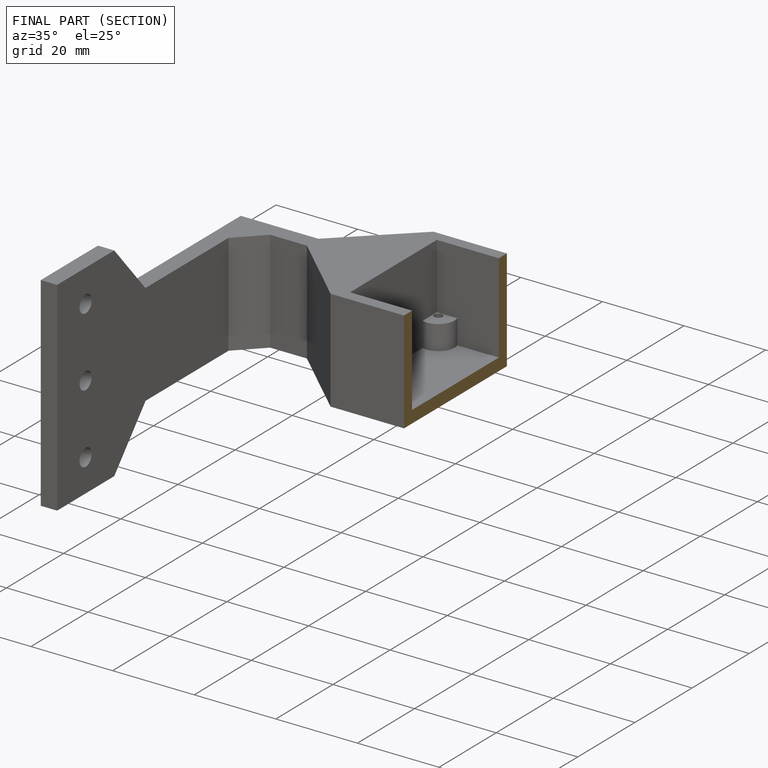
[diagram: finished part — half-section view (interior)]
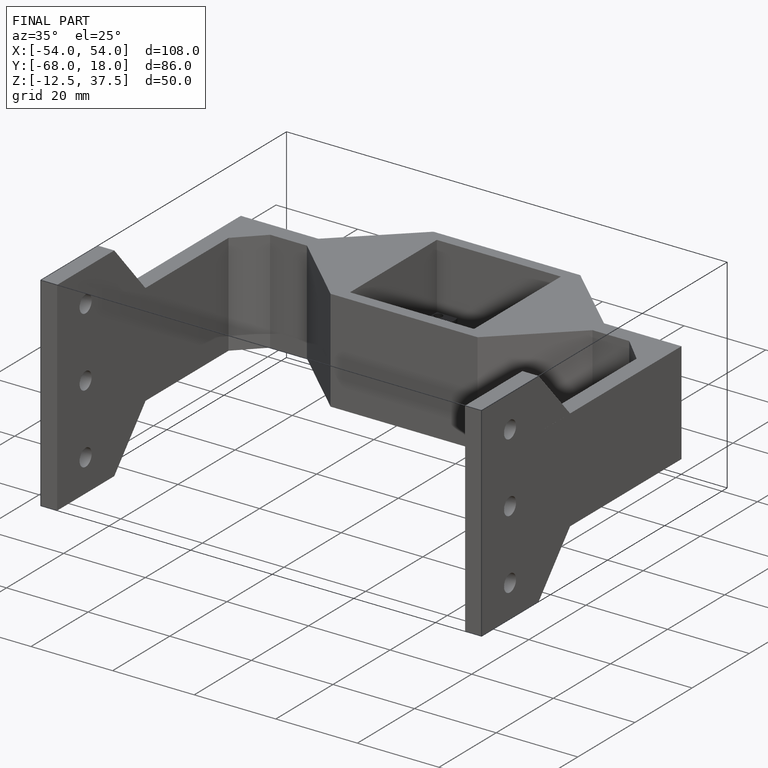
[diagram: finished part — iso view with bounding-box wireframe]
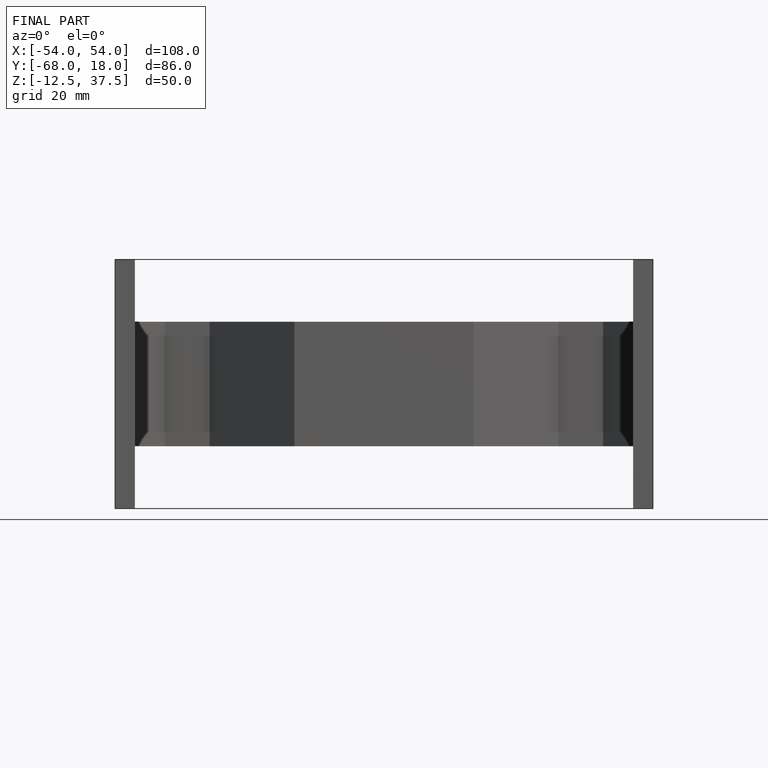
[diagram: finished part — front view with bounding-box wireframe]
